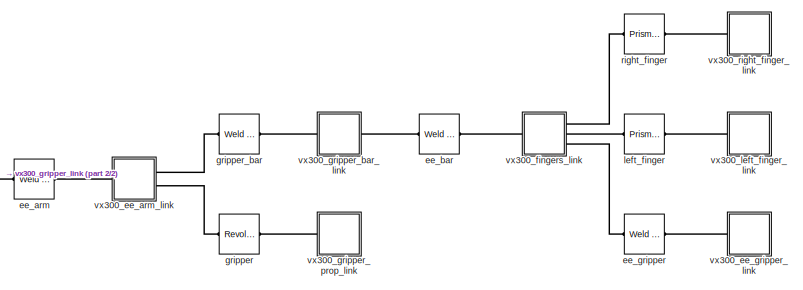
[diagram: root canvas - part 1/2, right side, full height]
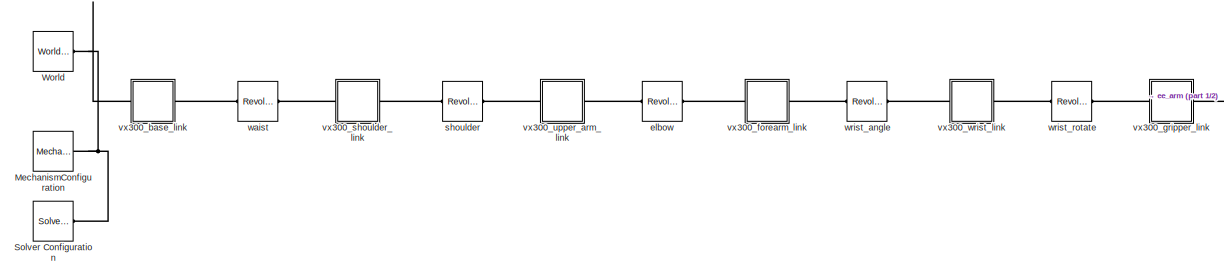
[diagram: root canvas - part 2/2, middle left region]
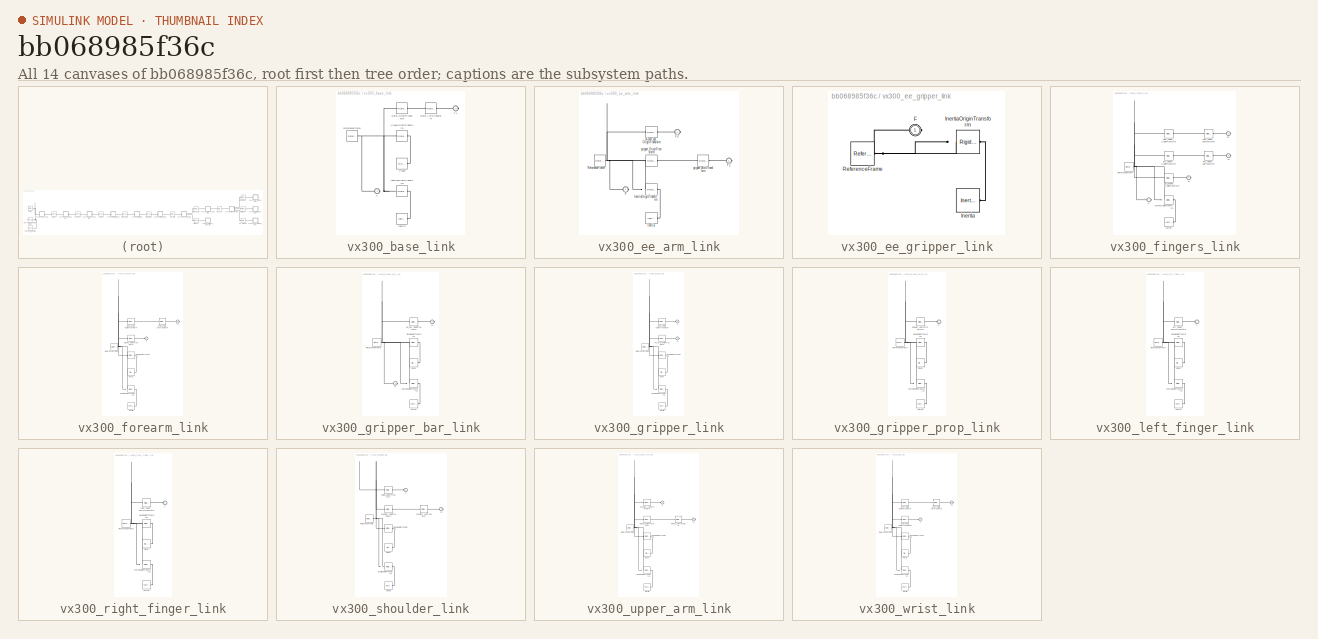
[diagram: thumbnail index - all 14 canvases of the model, root first then tree order]
MODEL slx_bb068985f36c
KIND model
CONFIG AbsTol = auto
CONFIG EnableMultiTasking = off
CONFIG FixedStep = auto
CONFIG MaxStep = auto
CONFIG MinStep = auto
CONFIG RelTol = 1e-3
CONFIG SampleTimeConstraint = Unconstrained
CONFIG SolverName = VariableStepAuto
CONFIG StartTime = 0.0
CONFIG StopTime = 10.0
BLOCK [Reference] MechanismConfiguration  REF=sm_lib/Utilities/Mechanism
Configuration
  Ports = [0, 0, 0, 0, 0, 0, 1]
  SourceBlock = sm_lib/Utilities/Mechanism\nConfiguration
  SourceProductBaseCode = MS
  SourceType = Mechanism\nConfiguration
BLOCK [Reference] Solver Configuration  REF=nesl_utility/Solver
Configuration
  Ports = [0, 0, 0, 0, 0, 0, 1]
  SourceBlock = nesl_utility/Solver\nConfiguration
  SourceProductBaseCode = SS,PW,VE
  SourceType = Solver\nConfiguration
BLOCK [Reference] World  REF=sm_lib/Frames and
Transforms/World Frame
  Ports = [0, 0, 0, 0, 0, 0, 1]
  SourceBlock = sm_lib/Frames and\nTransforms/World Frame
  SourceProductBaseCode = MS
  SourceType = World Frame
BLOCK [Reference] ee_arm  REF=sm_lib/Joints/Weld Joint
  Ports = [0, 0, 0, 0, 0, 1, 1]
  SourceBlock = sm_lib/Joints/Weld Joint
  SourceProductBaseCode = MS
  SourceType = Weld Joint
BLOCK [Reference] ee_bar  REF=sm_lib/Joints/Weld Joint
  Ports = [0, 0, 0, 0, 0, 1, 1]
  SourceBlock = sm_lib/Joints/Weld Joint
  SourceProductBaseCode = MS
  SourceType = Weld Joint
BLOCK [Reference] ee_gripper  REF=sm_lib/Joints/Weld Joint
  Ports = [0, 0, 0, 0, 0, 1, 1]
  SourceBlock = sm_lib/Joints/Weld Joint
  SourceProductBaseCode = MS
  SourceType = Weld Joint
BLOCK [Reference] elbow  REF=sm_lib/Joints/Revolute Joint
  Ports = [0, 0, 0, 0, 0, 1, 1]
  SourceBlock = sm_lib/Joints/Revolute Joint
  SourceProductBaseCode = MS
  SourceType = Revolute Joint
BLOCK [Reference] gripper  REF=sm_lib/Joints/Revolute Joint
  Ports = [0, 0, 0, 0, 0, 1, 1]
  SourceBlock = sm_lib/Joints/Revolute Joint
  SourceProductBaseCode = MS
  SourceType = Revolute Joint
BLOCK [Reference] gripper_bar  REF=sm_lib/Joints/Weld Joint
  Ports = [0, 0, 0, 0, 0, 1, 1]
  SourceBlock = sm_lib/Joints/Weld Joint
  SourceProductBaseCode = MS
  SourceType = Weld Joint
BLOCK [Reference] left_finger  REF=sm_lib/Joints/Prismatic
Joint
  Ports = [0, 0, 0, 0, 0, 1, 1]
  SourceBlock = sm_lib/Joints/Prismatic\nJoint
  SourceProductBaseCode = MS
  SourceType = Prismatic\nJoint
BLOCK [Reference] right_finger  REF=sm_lib/Joints/Prismatic
Joint
  Ports = [0, 0, 0, 0, 0, 1, 1]
  SourceBlock = sm_lib/Joints/Prismatic\nJoint
  SourceProductBaseCode = MS
  SourceType = Prismatic\nJoint
BLOCK [Reference] shoulder  REF=sm_lib/Joints/Revolute Joint
  Ports = [0, 0, 0, 0, 0, 1, 1]
  SourceBlock = sm_lib/Joints/Revolute Joint
  SourceProductBaseCode = MS
  SourceType = Revolute Joint
BLOCK [SubSystem] vx300_base_link
  Ports = [0, 0, 0, 0, 0, 1, 1]
  RequestExecContextInheritance = off
BLOCK [PMIOPort] vx300_base_link/F
  Side = Left
BLOCK [PMIOPort] vx300_base_link/F1
  Port = 2
  Side = Right
BLOCK [Reference] vx300_base_link/Inertia  REF=sm_lib/Body Elements/Inertia
  Ports = [0, 0, 0, 0, 0, 0, 1]
  SourceBlock = sm_lib/Body Elements/Inertia
  SourceProductBaseCode = MS
  SourceType = Inertia
BLOCK [Reference] vx300_base_link/InertiaOriginTransform  REF=sm_lib/Frames and
Transforms/Rigid
Transform
  Ports = [0, 0, 0, 0, 0, 1, 1]
  SourceBlock = sm_lib/Frames and\nTransforms/Rigid\nTransform
  SourceProductBaseCode = MS
  SourceType = Rigid\nTransform
BLOCK [Reference] vx300_base_link/ReferenceFrame  REF=sm_lib/Frames and
Transforms/Reference
Frame
  Ports = [0, 0, 0, 0, 0, 0, 1]
  SourceBlock = sm_lib/Frames and\nTransforms/Reference\nFrame
  SourceProductBaseCode = MS
  SourceType = Reference\nFrame
BLOCK [Reference] vx300_base_link/Visual  REF=sm_lib/Body Elements/File Solid
  Ports = [0, 0, 0, 0, 0, 0, 1]
  SourceBlock = sm_lib/Body Elements/File Solid
  SourceProductBaseCode = MS
  SourceType = File Solid
BLOCK [Reference] vx300_base_link/VisualOriginTransform  REF=sm_lib/Frames and
Transforms/Rigid
Transform
  Ports = [0, 0, 0, 0, 0, 1, 1]
  SourceBlock = sm_lib/Frames and\nTransforms/Rigid\nTransform
  SourceProductBaseCode = MS
  SourceType = Rigid\nTransform
BLOCK [Reference] vx300_base_link/waist_AxisTransform  REF=sm_lib/Frames and
Transforms/Rigid
Transform
  Ports = [0, 0, 0, 0, 0, 1, 1]
  SourceBlock = sm_lib/Frames and\nTransforms/Rigid\nTransform
  SourceProductBaseCode = MS
  SourceType = Rigid\nTransform
BLOCK [Reference] vx300_base_link/waist_OriginTransform  REF=sm_lib/Frames and
Transforms/Rigid
Transform
  Ports = [0, 0, 0, 0, 0, 1, 1]
  SourceBlock = sm_lib/Frames and\nTransforms/Rigid\nTransform
  SourceProductBaseCode = MS
  SourceType = Rigid\nTransform
BLOCK [SubSystem] vx300_ee_arm_link
  Ports = [0, 0, 0, 0, 0, 1, 2]
  RequestExecContextInheritance = off
BLOCK [PMIOPort] vx300_ee_arm_link/F
  Side = Left
BLOCK [PMIOPort] vx300_ee_arm_link/F1
  Port = 3
  Side = Right
BLOCK [PMIOPort] vx300_ee_arm_link/F2
  Port = 2
  Side = Right
BLOCK [Reference] vx300_ee_arm_link/Inertia  REF=sm_lib/Body Elements/Inertia
  Ports = [0, 0, 0, 0, 0, 0, 1]
  SourceBlock = sm_lib/Body Elements/Inertia
  SourceProductBaseCode = MS
  SourceType = Inertia
BLOCK [Reference] vx300_ee_arm_link/InertiaOriginTransform  REF=sm_lib/Frames and
Transforms/Rigid
Transform
  Ports = [0, 0, 0, 0, 0, 1, 1]
  SourceBlock = sm_lib/Frames and\nTransforms/Rigid\nTransform
  SourceProductBaseCode = MS
  SourceType = Rigid\nTransform
BLOCK [Reference] vx300_ee_arm_link/ReferenceFrame  REF=sm_lib/Frames and
Transforms/Reference
Frame
  Ports = [0, 0, 0, 0, 0, 0, 1]
  SourceBlock = sm_lib/Frames and\nTransforms/Reference\nFrame
  SourceProductBaseCode = MS
  SourceType = Reference\nFrame
BLOCK [Reference] vx300_ee_arm_link/gripper_AxisTransform  REF=sm_lib/Frames and
Transforms/Rigid
Transform
  Ports = [0, 0, 0, 0, 0, 1, 1]
  SourceBlock = sm_lib/Frames and\nTransforms/Rigid\nTransform
  SourceProductBaseCode = MS
  SourceType = Rigid\nTransform
BLOCK [Reference] vx300_ee_arm_link/gripper_OriginTransform  REF=sm_lib/Frames and
Transforms/Rigid
Transform
  Ports = [0, 0, 0, 0, 0, 1, 1]
  SourceBlock = sm_lib/Frames and\nTransforms/Rigid\nTransform
  SourceProductBaseCode = MS
  SourceType = Rigid\nTransform
BLOCK [Reference] vx300_ee_arm_link/gripper_bar_OriginTransform  REF=sm_lib/Frames and
Transforms/Rigid
Transform
  Ports = [0, 0, 0, 0, 0, 1, 1]
  SourceBlock = sm_lib/Frames and\nTransforms/Rigid\nTransform
  SourceProductBaseCode = MS
  SourceType = Rigid\nTransform
BLOCK [SubSystem] vx300_ee_gripper_link
  Ports = [0, 0, 0, 0, 0, 1]
  RequestExecContextInheritance = off
BLOCK [PMIOPort] vx300_ee_gripper_link/F
  Side = Left
BLOCK [Reference] vx300_ee_gripper_link/Inertia  REF=sm_lib/Body Elements/Inertia
  Ports = [0, 0, 0, 0, 0, 0, 1]
  SourceBlock = sm_lib/Body Elements/Inertia
  SourceProductBaseCode = MS
  SourceType = Inertia
BLOCK [Reference] vx300_ee_gripper_link/InertiaOriginTransform  REF=sm_lib/Frames and
Transforms/Rigid
Transform
  Ports = [0, 0, 0, 0, 0, 1, 1]
  SourceBlock = sm_lib/Frames and\nTransforms/Rigid\nTransform
  SourceProductBaseCode = MS
  SourceType = Rigid\nTransform
BLOCK [Reference] vx300_ee_gripper_link/ReferenceFrame  REF=sm_lib/Frames and
Transforms/Reference
Frame
  Ports = [0, 0, 0, 0, 0, 0, 1]
  SourceBlock = sm_lib/Frames and\nTransforms/Reference\nFrame
  SourceProductBaseCode = MS
  SourceType = Reference\nFrame
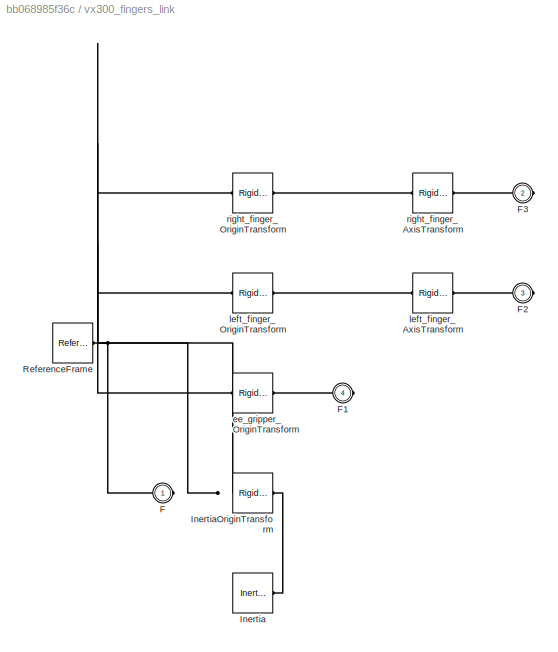
BLOCK [SubSystem] vx300_fingers_link
  Ports = [0, 0, 0, 0, 0, 1, 3]
  RequestExecContextInheritance = off
BLOCK [PMIOPort] vx300_fingers_link/F
  Side = Left
BLOCK [PMIOPort] vx300_fingers_link/F1
  Port = 4
  Side = Right
BLOCK [PMIOPort] vx300_fingers_link/F2
  Port = 3
  Side = Right
BLOCK [PMIOPort] vx300_fingers_link/F3
  Port = 2
  Side = Right
BLOCK [Reference] vx300_fingers_link/Inertia  REF=sm_lib/Body Elements/Inertia
  Ports = [0, 0, 0, 0, 0, 0, 1]
  SourceBlock = sm_lib/Body Elements/Inertia
  SourceProductBaseCode = MS
  SourceType = Inertia
BLOCK [Reference] vx300_fingers_link/InertiaOriginTransform  REF=sm_lib/Frames and
Transforms/Rigid
Transform
  Ports = [0, 0, 0, 0, 0, 1, 1]
  SourceBlock = sm_lib/Frames and\nTransforms/Rigid\nTransform
  SourceProductBaseCode = MS
  SourceType = Rigid\nTransform
BLOCK [Reference] vx300_fingers_link/ReferenceFrame  REF=sm_lib/Frames and
Transforms/Reference
Frame
  Ports = [0, 0, 0, 0, 0, 0, 1]
  SourceBlock = sm_lib/Frames and\nTransforms/Reference\nFrame
  SourceProductBaseCode = MS
  SourceType = Reference\nFrame
BLOCK [Reference] vx300_fingers_link/ee_gripper_OriginTransform  REF=sm_lib/Frames and
Transforms/Rigid
Transform
  Ports = [0, 0, 0, 0, 0, 1, 1]
  SourceBlock = sm_lib/Frames and\nTransforms/Rigid\nTransform
  SourceProductBaseCode = MS
  SourceType = Rigid\nTransform
BLOCK [Reference] vx300_fingers_link/left_finger_AxisTransform  REF=sm_lib/Frames and
Transforms/Rigid
Transform
  Ports = [0, 0, 0, 0, 0, 1, 1]
  SourceBlock = sm_lib/Frames and\nTransforms/Rigid\nTransform
  SourceProductBaseCode = MS
  SourceType = Rigid\nTransform
BLOCK [Reference] vx300_fingers_link/left_finger_OriginTransform  REF=sm_lib/Frames and
Transforms/Rigid
Transform
  Ports = [0, 0, 0, 0, 0, 1, 1]
  SourceBlock = sm_lib/Frames and\nTransforms/Rigid\nTransform
  SourceProductBaseCode = MS
  SourceType = Rigid\nTransform
BLOCK [Reference] vx300_fingers_link/right_finger_AxisTransform  REF=sm_lib/Frames and
Transforms/Rigid
Transform
  Ports = [0, 0, 0, 0, 0, 1, 1]
  SourceBlock = sm_lib/Frames and\nTransforms/Rigid\nTransform
  SourceProductBaseCode = MS
  SourceType = Rigid\nTransform
BLOCK [Reference] vx300_fingers_link/right_finger_OriginTransform  REF=sm_lib/Frames and
Transforms/Rigid
Transform
  Ports = [0, 0, 0, 0, 0, 1, 1]
  SourceBlock = sm_lib/Frames and\nTransforms/Rigid\nTransform
  SourceProductBaseCode = MS
  SourceType = Rigid\nTransform
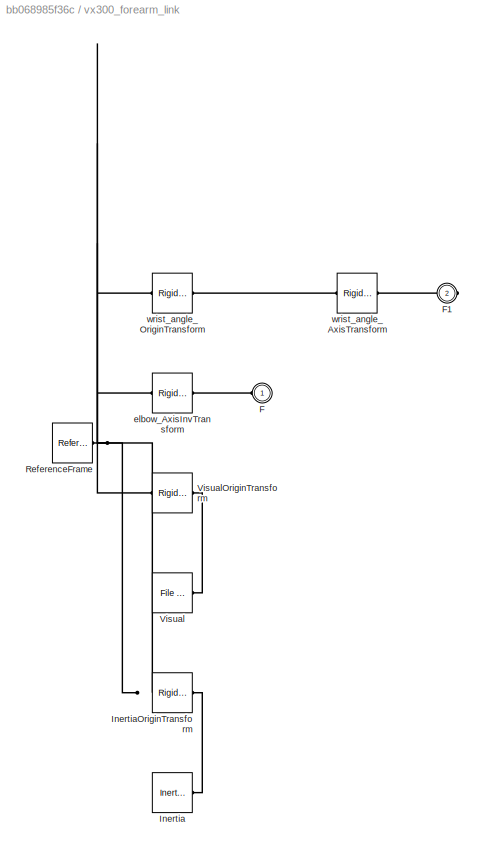
BLOCK [SubSystem] vx300_forearm_link
  Ports = [0, 0, 0, 0, 0, 1, 1]
  RequestExecContextInheritance = off
BLOCK [PMIOPort] vx300_forearm_link/F
  Side = Left
BLOCK [PMIOPort] vx300_forearm_link/F1
  Port = 2
  Side = Right
BLOCK [Reference] vx300_forearm_link/Inertia  REF=sm_lib/Body Elements/Inertia
  Ports = [0, 0, 0, 0, 0, 0, 1]
  SourceBlock = sm_lib/Body Elements/Inertia
  SourceProductBaseCode = MS
  SourceType = Inertia
BLOCK [Reference] vx300_forearm_link/InertiaOriginTransform  REF=sm_lib/Frames and
Transforms/Rigid
Transform
  Ports = [0, 0, 0, 0, 0, 1, 1]
  SourceBlock = sm_lib/Frames and\nTransforms/Rigid\nTransform
  SourceProductBaseCode = MS
  SourceType = Rigid\nTransform
BLOCK [Reference] vx300_forearm_link/ReferenceFrame  REF=sm_lib/Frames and
Transforms/Reference
Frame
  Ports = [0, 0, 0, 0, 0, 0, 1]
  SourceBlock = sm_lib/Frames and\nTransforms/Reference\nFrame
  SourceProductBaseCode = MS
  SourceType = Reference\nFrame
BLOCK [Reference] vx300_forearm_link/Visual  REF=sm_lib/Body Elements/File Solid
  Ports = [0, 0, 0, 0, 0, 0, 1]
  SourceBlock = sm_lib/Body Elements/File Solid
  SourceProductBaseCode = MS
  SourceType = File Solid
BLOCK [Reference] vx300_forearm_link/VisualOriginTransform  REF=sm_lib/Frames and
Transforms/Rigid
Transform
  Ports = [0, 0, 0, 0, 0, 1, 1]
  SourceBlock = sm_lib/Frames and\nTransforms/Rigid\nTransform
  SourceProductBaseCode = MS
  SourceType = Rigid\nTransform
BLOCK [Reference] vx300_forearm_link/elbow_AxisInvTransform  REF=sm_lib/Frames and
Transforms/Rigid
Transform
  Ports = [0, 0, 0, 0, 0, 1, 1]
  SourceBlock = sm_lib/Frames and\nTransforms/Rigid\nTransform
  SourceProductBaseCode = MS
  SourceType = Rigid\nTransform
BLOCK [Reference] vx300_forearm_link/wrist_angle_AxisTransform  REF=sm_lib/Frames and
Transforms/Rigid
Transform
  Ports = [0, 0, 0, 0, 0, 1, 1]
  SourceBlock = sm_lib/Frames and\nTransforms/Rigid\nTransform
  SourceProductBaseCode = MS
  SourceType = Rigid\nTransform
BLOCK [Reference] vx300_forearm_link/wrist_angle_OriginTransform  REF=sm_lib/Frames and
Transforms/Rigid
Transform
  Ports = [0, 0, 0, 0, 0, 1, 1]
  SourceBlock = sm_lib/Frames and\nTransforms/Rigid\nTransform
  SourceProductBaseCode = MS
  SourceType = Rigid\nTransform
BLOCK [SubSystem] vx300_gripper_bar_link
  Ports = [0, 0, 0, 0, 0, 1, 1]
  RequestExecContextInheritance = off
BLOCK [PMIOPort] vx300_gripper_bar_link/F
  Side = Left
BLOCK [PMIOPort] vx300_gripper_bar_link/F1
  Port = 2
  Side = Right
BLOCK [Reference] vx300_gripper_bar_link/Inertia  REF=sm_lib/Body Elements/Inertia
  Ports = [0, 0, 0, 0, 0, 0, 1]
  SourceBlock = sm_lib/Body Elements/Inertia
  SourceProductBaseCode = MS
  SourceType = Inertia
BLOCK [Reference] vx300_gripper_bar_link/InertiaOriginTransform  REF=sm_lib/Frames and
Transforms/Rigid
Transform
  Ports = [0, 0, 0, 0, 0, 1, 1]
  SourceBlock = sm_lib/Frames and\nTransforms/Rigid\nTransform
  SourceProductBaseCode = MS
  SourceType = Rigid\nTransform
BLOCK [Reference] vx300_gripper_bar_link/ReferenceFrame  REF=sm_lib/Frames and
Transforms/Reference
Frame
  Ports = [0, 0, 0, 0, 0, 0, 1]
  SourceBlock = sm_lib/Frames and\nTransforms/Reference\nFrame
  SourceProductBaseCode = MS
  SourceType = Reference\nFrame
BLOCK [Reference] vx300_gripper_bar_link/Visual  REF=sm_lib/Body Elements/File Solid
  Ports = [0, 0, 0, 0, 0, 0, 1]
  SourceBlock = sm_lib/Body Elements/File Solid
  SourceProductBaseCode = MS
  SourceType = File Solid
BLOCK [Reference] vx300_gripper_bar_link/VisualOriginTransform  REF=sm_lib/Frames and
Transforms/Rigid
Transform
  Ports = [0, 0, 0, 0, 0, 1, 1]
  SourceBlock = sm_lib/Frames and\nTransforms/Rigid\nTransform
  SourceProductBaseCode = MS
  SourceType = Rigid\nTransform
BLOCK [Reference] vx300_gripper_bar_link/ee_bar_OriginTransform  REF=sm_lib/Frames and
Transforms/Rigid
Transform
  Ports = [0, 0, 0, 0, 0, 1, 1]
  SourceBlock = sm_lib/Frames and\nTransforms/Rigid\nTransform
  SourceProductBaseCode = MS
  SourceType = Rigid\nTransform
BLOCK [SubSystem] vx300_gripper_link
  Ports = [0, 0, 0, 0, 0, 1, 1]
  RequestExecContextInheritance = off
BLOCK [PMIOPort] vx300_gripper_link/F
  Side = Left
BLOCK [PMIOPort] vx300_gripper_link/F1
  Port = 2
  Side = Right
BLOCK [Reference] vx300_gripper_link/Inertia  REF=sm_lib/Body Elements/Inertia
  Ports = [0, 0, 0, 0, 0, 0, 1]
  SourceBlock = sm_lib/Body Elements/Inertia
  SourceProductBaseCode = MS
  SourceType = Inertia
BLOCK [Reference] vx300_gripper_link/InertiaOriginTransform  REF=sm_lib/Frames and
Transforms/Rigid
Transform
  Ports = [0, 0, 0, 0, 0, 1, 1]
  SourceBlock = sm_lib/Frames and\nTransforms/Rigid\nTransform
  SourceProductBaseCode = MS
  SourceType = Rigid\nTransform
BLOCK [Reference] vx300_gripper_link/ReferenceFrame  REF=sm_lib/Frames and
Transforms/Reference
Frame
  Ports = [0, 0, 0, 0, 0, 0, 1]
  SourceBlock = sm_lib/Frames and\nTransforms/Reference\nFrame
  SourceProductBaseCode = MS
  SourceType = Reference\nFrame
BLOCK [Reference] vx300_gripper_link/Visual  REF=sm_lib/Body Elements/File Solid
  Ports = [0, 0, 0, 0, 0, 0, 1]
  SourceBlock = sm_lib/Body Elements/File Solid
  SourceProductBaseCode = MS
  SourceType = File Solid
BLOCK [Reference] vx300_gripper_link/VisualOriginTransform  REF=sm_lib/Frames and
Transforms/Rigid
Transform
  Ports = [0, 0, 0, 0, 0, 1, 1]
  SourceBlock = sm_lib/Frames and\nTransforms/Rigid\nTransform
  SourceProductBaseCode = MS
  SourceType = Rigid\nTransform
BLOCK [Reference] vx300_gripper_link/ee_arm_OriginTransform  REF=sm_lib/Frames and
Transforms/Rigid
Transform
  Ports = [0, 0, 0, 0, 0, 1, 1]
  SourceBlock = sm_lib/Frames and\nTransforms/Rigid\nTransform
  SourceProductBaseCode = MS
  SourceType = Rigid\nTransform
BLOCK [Reference] vx300_gripper_link/wrist_rotate_AxisInvTransform  REF=sm_lib/Frames and
Transforms/Rigid
Transform
  Ports = [0, 0, 0, 0, 0, 1, 1]
  SourceBlock = sm_lib/Frames and\nTransforms/Rigid\nTransform
  SourceProductBaseCode = MS
  SourceType = Rigid\nTransform
BLOCK [SubSystem] vx300_gripper_prop_link
  Ports = [0, 0, 0, 0, 0, 1]
  RequestExecContextInheritance = off
BLOCK [PMIOPort] vx300_gripper_prop_link/F
  Side = Left
BLOCK [Reference] vx300_gripper_prop_link/Inertia  REF=sm_lib/Body Elements/Inertia
  Ports = [0, 0, 0, 0, 0, 0, 1]
  SourceBlock = sm_lib/Body Elements/Inertia
  SourceProductBaseCode = MS
  SourceType = Inertia
BLOCK [Reference] vx300_gripper_prop_link/InertiaOriginTransform  REF=sm_lib/Frames and
Transforms/Rigid
Transform
  Ports = [0, 0, 0, 0, 0, 1, 1]
  SourceBlock = sm_lib/Frames and\nTransforms/Rigid\nTransform
  SourceProductBaseCode = MS
  SourceType = Rigid\nTransform
BLOCK [Reference] vx300_gripper_prop_link/ReferenceFrame  REF=sm_lib/Frames and
Transforms/Reference
Frame
  Ports = [0, 0, 0, 0, 0, 0, 1]
  SourceBlock = sm_lib/Frames and\nTransforms/Reference\nFrame
  SourceProductBaseCode = MS
  SourceType = Reference\nFrame
BLOCK [Reference] vx300_gripper_prop_link/Visual  REF=sm_lib/Body Elements/File Solid
  Ports = [0, 0, 0, 0, 0, 0, 1]
  SourceBlock = sm_lib/Body Elements/File Solid
  SourceProductBaseCode = MS
  SourceType = File Solid
BLOCK [Reference] vx300_gripper_prop_link/VisualOriginTransform  REF=sm_lib/Frames and
Transforms/Rigid
Transform
  Ports = [0, 0, 0, 0, 0, 1, 1]
  SourceBlock = sm_lib/Frames and\nTransforms/Rigid\nTransform
  SourceProductBaseCode = MS
  SourceType = Rigid\nTransform
BLOCK [Reference] vx300_gripper_prop_link/gripper_AxisInvTransform  REF=sm_lib/Frames and
Transforms/Rigid
Transform
  Ports = [0, 0, 0, 0, 0, 1, 1]
  SourceBlock = sm_lib/Frames and\nTransforms/Rigid\nTransform
  SourceProductBaseCode = MS
  SourceType = Rigid\nTransform
BLOCK [SubSystem] vx300_left_finger_link
  Ports = [0, 0, 0, 0, 0, 1]
  RequestExecContextInheritance = off
BLOCK [PMIOPort] vx300_left_finger_link/F
  Side = Left
BLOCK [Reference] vx300_left_finger_link/Inertia  REF=sm_lib/Body Elements/Inertia
  Ports = [0, 0, 0, 0, 0, 0, 1]
  SourceBlock = sm_lib/Body Elements/Inertia
  SourceProductBaseCode = MS
  SourceType = Inertia
BLOCK [Reference] vx300_left_finger_link/InertiaOriginTransform  REF=sm_lib/Frames and
Transforms/Rigid
Transform
  Ports = [0, 0, 0, 0, 0, 1, 1]
  SourceBlock = sm_lib/Frames and\nTransforms/Rigid\nTransform
  SourceProductBaseCode = MS
  SourceType = Rigid\nTransform
BLOCK [Reference] vx300_left_finger_link/ReferenceFrame  REF=sm_lib/Frames and
Transforms/Reference
Frame
  Ports = [0, 0, 0, 0, 0, 0, 1]
  SourceBlock = sm_lib/Frames and\nTransforms/Reference\nFrame
  SourceProductBaseCode = MS
  SourceType = Reference\nFrame
BLOCK [Reference] vx300_left_finger_link/Visual  REF=sm_lib/Body Elements/File Solid
  Ports = [0, 0, 0, 0, 0, 0, 1]
  SourceBlock = sm_lib/Body Elements/File Solid
  SourceProductBaseCode = MS
  SourceType = File Solid
BLOCK [Reference] vx300_left_finger_link/VisualOriginTransform  REF=sm_lib/Frames and
Transforms/Rigid
Transform
  Ports = [0, 0, 0, 0, 0, 1, 1]
  SourceBlock = sm_lib/Frames and\nTransforms/Rigid\nTransform
  SourceProductBaseCode = MS
  SourceType = Rigid\nTransform
BLOCK [Reference] vx300_left_finger_link/left_finger_AxisInvTransform  REF=sm_lib/Frames and
Transforms/Rigid
Transform
  Ports = [0, 0, 0, 0, 0, 1, 1]
  SourceBlock = sm_lib/Frames and\nTransforms/Rigid\nTransform
  SourceProductBaseCode = MS
  SourceType = Rigid\nTransform
BLOCK [SubSystem] vx300_right_finger_link
  Ports = [0, 0, 0, 0, 0, 1]
  RequestExecContextInheritance = off
BLOCK [PMIOPort] vx300_right_finger_link/F
  Side = Left
BLOCK [Reference] vx300_right_finger_link/Inertia  REF=sm_lib/Body Elements/Inertia
  Ports = [0, 0, 0, 0, 0, 0, 1]
  SourceBlock = sm_lib/Body Elements/Inertia
  SourceProductBaseCode = MS
  SourceType = Inertia
BLOCK [Reference] vx300_right_finger_link/InertiaOriginTransform  REF=sm_lib/Frames and
Transforms/Rigid
Transform
  Ports = [0, 0, 0, 0, 0, 1, 1]
  SourceBlock = sm_lib/Frames and\nTransforms/Rigid\nTransform
  SourceProductBaseCode = MS
  SourceType = Rigid\nTransform
BLOCK [Reference] vx300_right_finger_link/ReferenceFrame  REF=sm_lib/Frames and
Transforms/Reference
Frame
  Ports = [0, 0, 0, 0, 0, 0, 1]
  SourceBlock = sm_lib/Frames and\nTransforms/Reference\nFrame
  SourceProductBaseCode = MS
  SourceType = Reference\nFrame
BLOCK [Reference] vx300_right_finger_link/Visual  REF=sm_lib/Body Elements/File Solid
  Ports = [0, 0, 0, 0, 0, 0, 1]
  SourceBlock = sm_lib/Body Elements/File Solid
  SourceProductBaseCode = MS
  SourceType = File Solid
BLOCK [Reference] vx300_right_finger_link/VisualOriginTransform  REF=sm_lib/Frames and
Transforms/Rigid
Transform
  Ports = [0, 0, 0, 0, 0, 1, 1]
  SourceBlock = sm_lib/Frames and\nTransforms/Rigid\nTransform
  SourceProductBaseCode = MS
  SourceType = Rigid\nTransform
BLOCK [Reference] vx300_right_finger_link/right_finger_AxisInvTransform  REF=sm_lib/Frames and
Transforms/Rigid
Transform
  Ports = [0, 0, 0, 0, 0, 1, 1]
  SourceBlock = sm_lib/Frames and\nTransforms/Rigid\nTransform
  SourceProductBaseCode = MS
  SourceType = Rigid\nTransform
BLOCK [SubSystem] vx300_shoulder_link
  Ports = [0, 0, 0, 0, 0, 1, 1]
  RequestExecContextInheritance = off
BLOCK [PMIOPort] vx300_shoulder_link/F
  Side = Left
BLOCK [PMIOPort] vx300_shoulder_link/F1
  Port = 2
  Side = Right
BLOCK [Reference] vx300_shoulder_link/Inertia  REF=sm_lib/Body Elements/Inertia
  Ports = [0, 0, 0, 0, 0, 0, 1]
  SourceBlock = sm_lib/Body Elements/Inertia
  SourceProductBaseCode = MS
  SourceType = Inertia
BLOCK [Reference] vx300_shoulder_link/InertiaOriginTransform  REF=sm_lib/Frames and
Transforms/Rigid
Transform
  Ports = [0, 0, 0, 0, 0, 1, 1]
  SourceBlock = sm_lib/Frames and\nTransforms/Rigid\nTransform
  SourceProductBaseCode = MS
  SourceType = Rigid\nTransform
BLOCK [Reference] vx300_shoulder_link/ReferenceFrame  REF=sm_lib/Frames and
Transforms/Reference
Frame
  Ports = [0, 0, 0, 0, 0, 0, 1]
  SourceBlock = sm_lib/Frames and\nTransforms/Reference\nFrame
  SourceProductBaseCode = MS
  SourceType = Reference\nFrame
BLOCK [Reference] vx300_shoulder_link/Visual  REF=sm_lib/Body Elements/File Solid
  Ports = [0, 0, 0, 0, 0, 0, 1]
  SourceBlock = sm_lib/Body Elements/File Solid
  SourceProductBaseCode = MS
  SourceType = File Solid
BLOCK [Reference] vx300_shoulder_link/VisualOriginTransform  REF=sm_lib/Frames and
Transforms/Rigid
Transform
  Ports = [0, 0, 0, 0, 0, 1, 1]
  SourceBlock = sm_lib/Frames and\nTransforms/Rigid\nTransform
  SourceProductBaseCode = MS
  SourceType = Rigid\nTransform
BLOCK [Reference] vx300_shoulder_link/shoulder_AxisTransform  REF=sm_lib/Frames and
Transforms/Rigid
Transform
  Ports = [0, 0, 0, 0, 0, 1, 1]
  SourceBlock = sm_lib/Frames and\nTransforms/Rigid\nTransform
  SourceProductBaseCode = MS
  SourceType = Rigid\nTransform
BLOCK [Reference] vx300_shoulder_link/shoulder_OriginTransform  REF=sm_lib/Frames and
Transforms/Rigid
Transform
  Ports = [0, 0, 0, 0, 0, 1, 1]
  SourceBlock = sm_lib/Frames and\nTransforms/Rigid\nTransform
  SourceProductBaseCode = MS
  SourceType = Rigid\nTransform
BLOCK [Reference] vx300_shoulder_link/waist_AxisInvTransform  REF=sm_lib/Frames and
Transforms/Rigid
Transform
  Ports = [0, 0, 0, 0, 0, 1, 1]
  SourceBlock = sm_lib/Frames and\nTransforms/Rigid\nTransform
  SourceProductBaseCode = MS
  SourceType = Rigid\nTransform
BLOCK [SubSystem] vx300_upper_arm_link
  Ports = [0, 0, 0, 0, 0, 1, 1]
  RequestExecContextInheritance = off
BLOCK [PMIOPort] vx300_upper_arm_link/F
  Side = Left
BLOCK [PMIOPort] vx300_upper_arm_link/F1
  Port = 2
  Side = Right
BLOCK [Reference] vx300_upper_arm_link/Inertia  REF=sm_lib/Body Elements/Inertia
  Ports = [0, 0, 0, 0, 0, 0, 1]
  SourceBlock = sm_lib/Body Elements/Inertia
  SourceProductBaseCode = MS
  SourceType = Inertia
BLOCK [Reference] vx300_upper_arm_link/InertiaOriginTransform  REF=sm_lib/Frames and
Transforms/Rigid
Transform
  Ports = [0, 0, 0, 0, 0, 1, 1]
  SourceBlock = sm_lib/Frames and\nTransforms/Rigid\nTransform
  SourceProductBaseCode = MS
  SourceType = Rigid\nTransform
BLOCK [Reference] vx300_upper_arm_link/ReferenceFrame  REF=sm_lib/Frames and
Transforms/Reference
Frame
  Ports = [0, 0, 0, 0, 0, 0, 1]
  SourceBlock = sm_lib/Frames and\nTransforms/Reference\nFrame
  SourceProductBaseCode = MS
  SourceType = Reference\nFrame
BLOCK [Reference] vx300_upper_arm_link/Visual  REF=sm_lib/Body Elements/File Solid
  Ports = [0, 0, 0, 0, 0, 0, 1]
  SourceBlock = sm_lib/Body Elements/File Solid
  SourceProductBaseCode = MS
  SourceType = File Solid
BLOCK [Reference] vx300_upper_arm_link/VisualOriginTransform  REF=sm_lib/Frames and
Transforms/Rigid
Transform
  Ports = [0, 0, 0, 0, 0, 1, 1]
  SourceBlock = sm_lib/Frames and\nTransforms/Rigid\nTransform
  SourceProductBaseCode = MS
  SourceType = Rigid\nTransform
BLOCK [Reference] vx300_upper_arm_link/elbow_AxisTransform  REF=sm_lib/Frames and
Transforms/Rigid
Transform
  Ports = [0, 0, 0, 0, 0, 1, 1]
  SourceBlock = sm_lib/Frames and\nTransforms/Rigid\nTransform
  SourceProductBaseCode = MS
  SourceType = Rigid\nTransform
BLOCK [Reference] vx300_upper_arm_link/elbow_OriginTransform  REF=sm_lib/Frames and
Transforms/Rigid
Transform
  Ports = [0, 0, 0, 0, 0, 1, 1]
  SourceBlock = sm_lib/Frames and\nTransforms/Rigid\nTransform
  SourceProductBaseCode = MS
  SourceType = Rigid\nTransform
BLOCK [Reference] vx300_upper_arm_link/shoulder_AxisInvTransform  REF=sm_lib/Frames and
Transforms/Rigid
Transform
  Ports = [0, 0, 0, 0, 0, 1, 1]
  SourceBlock = sm_lib/Frames and\nTransforms/Rigid\nTransform
  SourceProductBaseCode = MS
  SourceType = Rigid\nTransform
BLOCK [SubSystem] vx300_wrist_link
  Ports = [0, 0, 0, 0, 0, 1, 1]
  RequestExecContextInheritance = off
BLOCK [PMIOPort] vx300_wrist_link/F
  Side = Left
BLOCK [PMIOPort] vx300_wrist_link/F1
  Port = 2
  Side = Right
BLOCK [Reference] vx300_wrist_link/Inertia  REF=sm_lib/Body Elements/Inertia
  Ports = [0, 0, 0, 0, 0, 0, 1]
  SourceBlock = sm_lib/Body Elements/Inertia
  SourceProductBaseCode = MS
  SourceType = Inertia
BLOCK [Reference] vx300_wrist_link/InertiaOriginTransform  REF=sm_lib/Frames and
Transforms/Rigid
Transform
  Ports = [0, 0, 0, 0, 0, 1, 1]
  SourceBlock = sm_lib/Frames and\nTransforms/Rigid\nTransform
  SourceProductBaseCode = MS
  SourceType = Rigid\nTransform
BLOCK [Reference] vx300_wrist_link/ReferenceFrame  REF=sm_lib/Frames and
Transforms/Reference
Frame
  Ports = [0, 0, 0, 0, 0, 0, 1]
  SourceBlock = sm_lib/Frames and\nTransforms/Reference\nFrame
  SourceProductBaseCode = MS
  SourceType = Reference\nFrame
BLOCK [Reference] vx300_wrist_link/Visual  REF=sm_lib/Body Elements/File Solid
  Ports = [0, 0, 0, 0, 0, 0, 1]
  SourceBlock = sm_lib/Body Elements/File Solid
  SourceProductBaseCode = MS
  SourceType = File Solid
BLOCK [Reference] vx300_wrist_link/VisualOriginTransform  REF=sm_lib/Frames and
Transforms/Rigid
Transform
  Ports = [0, 0, 0, 0, 0, 1, 1]
  SourceBlock = sm_lib/Frames and\nTransforms/Rigid\nTransform
  SourceProductBaseCode = MS
  SourceType = Rigid\nTransform
BLOCK [Reference] vx300_wrist_link/wrist_angle_AxisInvTransform  REF=sm_lib/Frames and
Transforms/Rigid
Transform
  Ports = [0, 0, 0, 0, 0, 1, 1]
  SourceBlock = sm_lib/Frames and\nTransforms/Rigid\nTransform
  SourceProductBaseCode = MS
  SourceType = Rigid\nTransform
BLOCK [Reference] vx300_wrist_link/wrist_rotate_AxisTransform  REF=sm_lib/Frames and
Transforms/Rigid
Transform
  Ports = [0, 0, 0, 0, 0, 1, 1]
  SourceBlock = sm_lib/Frames and\nTransforms/Rigid\nTransform
  SourceProductBaseCode = MS
  SourceType = Rigid\nTransform
BLOCK [Reference] vx300_wrist_link/wrist_rotate_OriginTransform  REF=sm_lib/Frames and
Transforms/Rigid
Transform
  Ports = [0, 0, 0, 0, 0, 1, 1]
  SourceBlock = sm_lib/Frames and\nTransforms/Rigid\nTransform
  SourceProductBaseCode = MS
  SourceType = Rigid\nTransform
BLOCK [Reference] waist  REF=sm_lib/Joints/Revolute Joint
  Ports = [0, 0, 0, 0, 0, 1, 1]
  SourceBlock = sm_lib/Joints/Revolute Joint
  SourceProductBaseCode = MS
  SourceType = Revolute Joint
BLOCK [Reference] wrist_angle  REF=sm_lib/Joints/Revolute Joint
  Ports = [0, 0, 0, 0, 0, 1, 1]
  SourceBlock = sm_lib/Joints/Revolute Joint
  SourceProductBaseCode = MS
  SourceType = Revolute Joint
BLOCK [Reference] wrist_rotate  REF=sm_lib/Joints/Revolute Joint
  Ports = [0, 0, 0, 0, 0, 1, 1]
  SourceBlock = sm_lib/Joints/Revolute Joint
  SourceProductBaseCode = MS
  SourceType = Revolute Joint
PNET net1: MechanismConfiguration:RConn1 -- Solver Configuration:RConn1 -- World:RConn1 -- vx300_base_link:LConn1
PLINE ee_arm:LConn1 -- vx300_gripper_link:RConn1
PLINE ee_arm:RConn1 -- vx300_ee_arm_link:LConn1
PLINE ee_bar:LConn1 -- vx300_gripper_bar_link:RConn1
PLINE ee_bar:RConn1 -- vx300_fingers_link:LConn1
PLINE ee_gripper:LConn1 -- vx300_fingers_link:RConn3
PLINE ee_gripper:RConn1 -- vx300_ee_gripper_link:LConn1
PLINE elbow:LConn1 -- vx300_upper_arm_link:RConn1
PLINE elbow:RConn1 -- vx300_forearm_link:LConn1
PLINE gripper:LConn1 -- vx300_ee_arm_link:RConn2
PLINE gripper:RConn1 -- vx300_gripper_prop_link:LConn1
PLINE gripper_bar:LConn1 -- vx300_ee_arm_link:RConn1
PLINE gripper_bar:RConn1 -- vx300_gripper_bar_link:LConn1
PLINE left_finger:LConn1 -- vx300_fingers_link:RConn2
PLINE left_finger:RConn1 -- vx300_left_finger_link:LConn1
PLINE right_finger:LConn1 -- vx300_fingers_link:RConn1
PLINE right_finger:RConn1 -- vx300_right_finger_link:LConn1
PLINE shoulder:LConn1 -- vx300_shoulder_link:RConn1
PLINE shoulder:RConn1 -- vx300_upper_arm_link:LConn1
PLINE vx300_base_link/F1:RConn1 -- vx300_base_link/waist_AxisTransform:RConn1
PNET net2: vx300_base_link/F:RConn1 -- vx300_base_link/InertiaOriginTransform:LConn1 -- vx300_base_link/ReferenceFrame:RConn1 -- vx300_base_link/VisualOriginTransform:LConn1 -- vx300_base_link/waist_OriginTransform:LConn1
PLINE vx300_base_link/Inertia:RConn1 -- vx300_base_link/InertiaOriginTransform:RConn1
PLINE vx300_base_link/Visual:RConn1 -- vx300_base_link/VisualOriginTransform:RConn1
PLINE vx300_base_link/waist_AxisTransform:LConn1 -- vx300_base_link/waist_OriginTransform:RConn1
PLINE vx300_base_link:RConn1 -- waist:LConn1
PLINE vx300_ee_arm_link/F1:RConn1 -- vx300_ee_arm_link/gripper_AxisTransform:RConn1
PLINE vx300_ee_arm_link/F2:RConn1 -- vx300_ee_arm_link/gripper_bar_OriginTransform:RConn1
PNET net3: vx300_ee_arm_link/F:RConn1 -- vx300_ee_arm_link/InertiaOriginTransform:LConn1 -- vx300_ee_arm_link/ReferenceFrame:RConn1 -- vx300_ee_arm_link/gripper_OriginTransform:LConn1 -- vx300_ee_arm_link/gripper_bar_OriginTransform:LConn1
PLINE vx300_ee_arm_link/Inertia:RConn1 -- vx300_ee_arm_link/InertiaOriginTransform:RConn1
PLINE vx300_ee_arm_link/gripper_AxisTransform:LConn1 -- vx300_ee_arm_link/gripper_OriginTransform:RConn1
PNET net4: vx300_ee_gripper_link/F:RConn1 -- vx300_ee_gripper_link/InertiaOriginTransform:LConn1 -- vx300_ee_gripper_link/ReferenceFrame:RConn1
PLINE vx300_ee_gripper_link/Inertia:RConn1 -- vx300_ee_gripper_link/InertiaOriginTransform:RConn1
PLINE vx300_fingers_link/F1:RConn1 -- vx300_fingers_link/ee_gripper_OriginTransform:RConn1
PLINE vx300_fingers_link/F2:RConn1 -- vx300_fingers_link/left_finger_AxisTransform:RConn1
PLINE vx300_fingers_link/F3:RConn1 -- vx300_fingers_link/right_finger_AxisTransform:RConn1
PNET net5: vx300_fingers_link/F:RConn1 -- vx300_fingers_link/InertiaOriginTransform:LConn1 -- vx300_fingers_link/ReferenceFrame:RConn1 -- vx300_fingers_link/ee_gripper_OriginTransform:LConn1 -- vx300_fingers_link/left_finger_OriginTransform:LConn1 -- vx300_fingers_link/right_finger_OriginTransform:LConn1
PLINE vx300_fingers_link/Inertia:RConn1 -- vx300_fingers_link/InertiaOriginTransform:RConn1
PLINE vx300_fingers_link/left_finger_AxisTransform:LConn1 -- vx300_fingers_link/left_finger_OriginTransform:RConn1
PLINE vx300_fingers_link/right_finger_AxisTransform:LConn1 -- vx300_fingers_link/right_finger_OriginTransform:RConn1
PLINE vx300_forearm_link/F1:RConn1 -- vx300_forearm_link/wrist_angle_AxisTransform:RConn1
PLINE vx300_forearm_link/F:RConn1 -- vx300_forearm_link/elbow_AxisInvTransform:RConn1
PLINE vx300_forearm_link/Inertia:RConn1 -- vx300_forearm_link/InertiaOriginTransform:RConn1
PNET net6: vx300_forearm_link/InertiaOriginTransform:LConn1 -- vx300_forearm_link/ReferenceFrame:RConn1 -- vx300_forearm_link/VisualOriginTransform:LConn1 -- vx300_forearm_link/elbow_AxisInvTransform:LConn1 -- vx300_forearm_link/wrist_angle_OriginTransform:LConn1
PLINE vx300_forearm_link/Visual:RConn1 -- vx300_forearm_link/VisualOriginTransform:RConn1
PLINE vx300_forearm_link/wrist_angle_AxisTransform:LConn1 -- vx300_forearm_link/wrist_angle_OriginTransform:RConn1
PLINE vx300_forearm_link:RConn1 -- wrist_angle:LConn1
PLINE vx300_gripper_bar_link/F1:RConn1 -- vx300_gripper_bar_link/ee_bar_OriginTransform:RConn1
PNET net7: vx300_gripper_bar_link/F:RConn1 -- vx300_gripper_bar_link/InertiaOriginTransform:LConn1 -- vx300_gripper_bar_link/ReferenceFrame:RConn1 -- vx300_gripper_bar_link/VisualOriginTransform:LConn1 -- vx300_gripper_bar_link/ee_bar_OriginTransform:LConn1
PLINE vx300_gripper_bar_link/Inertia:RConn1 -- vx300_gripper_bar_link/InertiaOriginTransform:RConn1
PLINE vx300_gripper_bar_link/Visual:RConn1 -- vx300_gripper_bar_link/VisualOriginTransform:RConn1
PLINE vx300_gripper_link/F1:RConn1 -- vx300_gripper_link/ee_arm_OriginTransform:RConn1
PLINE vx300_gripper_link/F:RConn1 -- vx300_gripper_link/wrist_rotate_AxisInvTransform:RConn1
PLINE vx300_gripper_link/Inertia:RConn1 -- vx300_gripper_link/InertiaOriginTransform:RConn1
PNET net8: vx300_gripper_link/InertiaOriginTransform:LConn1 -- vx300_gripper_link/ReferenceFrame:RConn1 -- vx300_gripper_link/VisualOriginTransform:LConn1 -- vx300_gripper_link/ee_arm_OriginTransform:LConn1 -- vx300_gripper_link/wrist_rotate_AxisInvTransform:LConn1
PLINE vx300_gripper_link/Visual:RConn1 -- vx300_gripper_link/VisualOriginTransform:RConn1
PLINE vx300_gripper_link:LConn1 -- wrist_rotate:RConn1
PLINE vx300_gripper_prop_link/F:RConn1 -- vx300_gripper_prop_link/gripper_AxisInvTransform:RConn1
PLINE vx300_gripper_prop_link/Inertia:RConn1 -- vx300_gripper_prop_link/InertiaOriginTransform:RConn1
PNET net9: vx300_gripper_prop_link/InertiaOriginTransform:LConn1 -- vx300_gripper_prop_link/ReferenceFrame:RConn1 -- vx300_gripper_prop_link/VisualOriginTransform:LConn1 -- vx300_gripper_prop_link/gripper_AxisInvTransform:LConn1
PLINE vx300_gripper_prop_link/Visual:RConn1 -- vx300_gripper_prop_link/VisualOriginTransform:RConn1
PLINE vx300_left_finger_link/F:RConn1 -- vx300_left_finger_link/left_finger_AxisInvTransform:RConn1
PLINE vx300_left_finger_link/Inertia:RConn1 -- vx300_left_finger_link/InertiaOriginTransform:RConn1
PNET net10: vx300_left_finger_link/InertiaOriginTransform:LConn1 -- vx300_left_finger_link/ReferenceFrame:RConn1 -- vx300_left_finger_link/VisualOriginTransform:LConn1 -- vx300_left_finger_link/left_finger_AxisInvTransform:LConn1
PLINE vx300_left_finger_link/Visual:RConn1 -- vx300_left_finger_link/VisualOriginTransform:RConn1
PLINE vx300_right_finger_link/F:RConn1 -- vx300_right_finger_link/right_finger_AxisInvTransform:RConn1
PLINE vx300_right_finger_link/Inertia:RConn1 -- vx300_right_finger_link/InertiaOriginTransform:RConn1
PNET net11: vx300_right_finger_link/InertiaOriginTransform:LConn1 -- vx300_right_finger_link/ReferenceFrame:RConn1 -- vx300_right_finger_link/VisualOriginTransform:LConn1 -- vx300_right_finger_link/right_finger_AxisInvTransform:LConn1
PLINE vx300_right_finger_link/Visual:RConn1 -- vx300_right_finger_link/VisualOriginTransform:RConn1
PLINE vx300_shoulder_link/F1:RConn1 -- vx300_shoulder_link/shoulder_AxisTransform:RConn1
PLINE vx300_shoulder_link/F:RConn1 -- vx300_shoulder_link/waist_AxisInvTransform:RConn1
PLINE vx300_shoulder_link/Inertia:RConn1 -- vx300_shoulder_link/InertiaOriginTransform:RConn1
PNET net12: vx300_shoulder_link/InertiaOriginTransform:LConn1 -- vx300_shoulder_link/ReferenceFrame:RConn1 -- vx300_shoulder_link/VisualOriginTransform:LConn1 -- vx300_shoulder_link/shoulder_OriginTransform:LConn1 -- vx300_shoulder_link/waist_AxisInvTransform:LConn1
PLINE vx300_shoulder_link/Visual:RConn1 -- vx300_shoulder_link/VisualOriginTransform:RConn1
PLINE vx300_shoulder_link/shoulder_AxisTransform:LConn1 -- vx300_shoulder_link/shoulder_OriginTransform:RConn1
PLINE vx300_shoulder_link:LConn1 -- waist:RConn1
PLINE vx300_upper_arm_link/F1:RConn1 -- vx300_upper_arm_link/elbow_AxisTransform:RConn1
PLINE vx300_upper_arm_link/F:RConn1 -- vx300_upper_arm_link/shoulder_AxisInvTransform:RConn1
PLINE vx300_upper_arm_link/Inertia:RConn1 -- vx300_upper_arm_link/InertiaOriginTransform:RConn1
PNET net13: vx300_upper_arm_link/InertiaOriginTransform:LConn1 -- vx300_upper_arm_link/ReferenceFrame:RConn1 -- vx300_upper_arm_link/VisualOriginTransform:LConn1 -- vx300_upper_arm_link/elbow_OriginTransform:LConn1 -- vx300_upper_arm_link/shoulder_AxisInvTransform:LConn1
PLINE vx300_upper_arm_link/Visual:RConn1 -- vx300_upper_arm_link/VisualOriginTransform:RConn1
PLINE vx300_upper_arm_link/elbow_AxisTransform:LConn1 -- vx300_upper_arm_link/elbow_OriginTransform:RConn1
PLINE vx300_wrist_link/F1:RConn1 -- vx300_wrist_link/wrist_rotate_AxisTransform:RConn1
PLINE vx300_wrist_link/F:RConn1 -- vx300_wrist_link/wrist_angle_AxisInvTransform:RConn1
PLINE vx300_wrist_link/Inertia:RConn1 -- vx300_wrist_link/InertiaOriginTransform:RConn1
PNET net14: vx300_wrist_link/InertiaOriginTransform:LConn1 -- vx300_wrist_link/ReferenceFrame:RConn1 -- vx300_wrist_link/VisualOriginTransform:LConn1 -- vx300_wrist_link/wrist_angle_AxisInvTransform:LConn1 -- vx300_wrist_link/wrist_rotate_OriginTransform:LConn1
PLINE vx300_wrist_link/Visual:RConn1 -- vx300_wrist_link/VisualOriginTransform:RConn1
PLINE vx300_wrist_link/wrist_rotate_AxisTransform:LConn1 -- vx300_wrist_link/wrist_rotate_OriginTransform:RConn1
PLINE vx300_wrist_link:LConn1 -- wrist_angle:RConn1
PLINE vx300_wrist_link:RConn1 -- wrist_rotate:LConn1
note: PNET lines group multi-terminal physical nets as a canonical sorted terminal list (undirected conserving connections); 2-terminal nets keep the pairwise PLINE form
